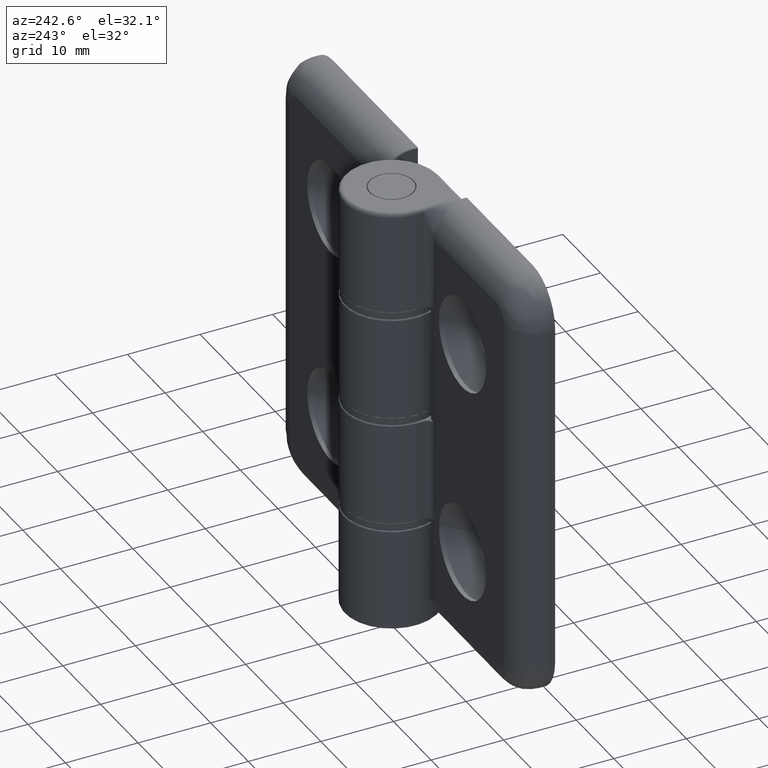
[diagram: clean part render]
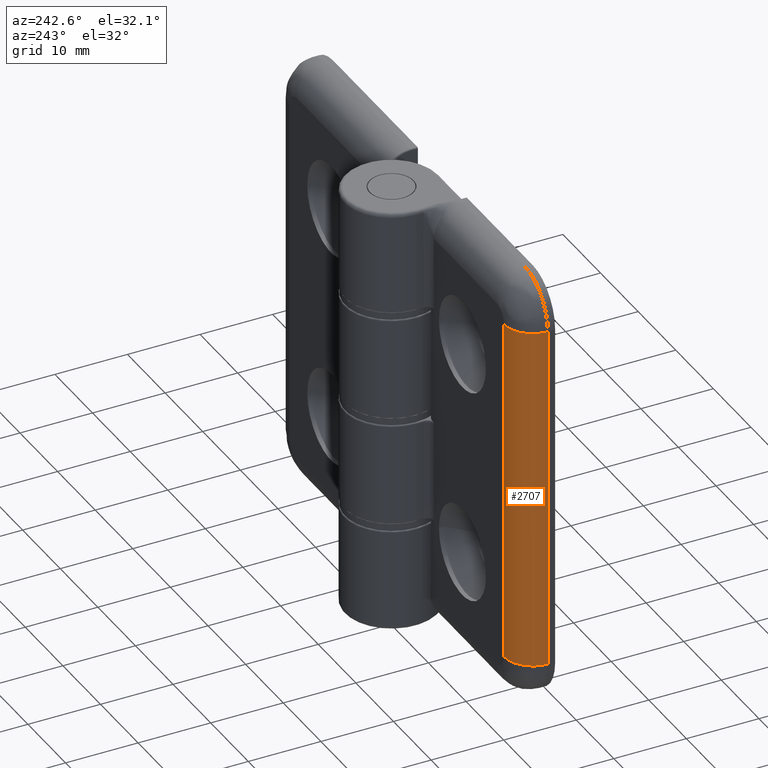
[diagram: same view with one face highlighted and labeled with its STEP entity id]
A machine part, auxiliary view. The second image highlights one B-rep face of the part: STEP entity #2707.
In plain terms, the highlighted cylindrical surface (edge-blend (fillet) strip) has radius 4 mm, axis along (0, 0, 1).
Its self-contained STEP definition (entity closure, byte-faithful):
#247=CIRCLE('',#2950,4.);
#249=CIRCLE('',#2952,4.);
#437=FACE_OUTER_BOUND('',#622,.T.);
#622=EDGE_LOOP('',(#2108,#2109,#2110,#2111));
#839=LINE('',#4398,#1017);
#851=LINE('',#4517,#1029);
#1017=VECTOR('',#3406,48.);
#1029=VECTOR('',#3522,48.);
#1231=VERTEX_POINT('',#4396);
#1232=VERTEX_POINT('',#4397);
#1254=VERTEX_POINT('',#4497);
#1256=VERTEX_POINT('',#4511);
#1523=EDGE_CURVE('',#1231,#1232,#839,.T.);
#1563=EDGE_CURVE('',#1232,#1254,#247,.T.);
#1565=EDGE_CURVE('',#1256,#1231,#249,.T.);
#1568=EDGE_CURVE('',#1254,#1256,#851,.T.);
#2108=ORIENTED_EDGE('',*,*,#1523,.T.);
#2109=ORIENTED_EDGE('',*,*,#1563,.T.);
#2110=ORIENTED_EDGE('',*,*,#1568,.T.);
#2111=ORIENTED_EDGE('',*,*,#1565,.T.);
#2597=CYLINDRICAL_SURFACE('',#2955,4.);
#2707=ADVANCED_FACE('',(#437),#2597,.T.);
#2950=AXIS2_PLACEMENT_3D('',#4500,#3510,#3511);
#2952=AXIS2_PLACEMENT_3D('',#4512,#3514,#3515);
#2955=AXIS2_PLACEMENT_3D('',#4516,#3520,#3521);
#3406=DIRECTION('',(0.,0.,-1.));
#3510=DIRECTION('center_axis',(0.,0.,1.));
#3511=DIRECTION('ref_axis',(0.,1.,0.));
#3514=DIRECTION('center_axis',(0.,0.,-1.));
#3515=DIRECTION('ref_axis',(-1.,0.,0.));
#3520=DIRECTION('center_axis',(0.,0.,1.));
#3521=DIRECTION('ref_axis',(-0.707106781186547,0.707106781186548,0.));
#3522=DIRECTION('',(0.,0.,1.));
#4396=CARTESIAN_POINT('',(-26.,-2.00000000000001,24.));
#4397=CARTESIAN_POINT('',(-26.,-2.00000000000001,-24.));
#4398=CARTESIAN_POINT('',(-26.,-2.00000000000001,0.));
#4497=CARTESIAN_POINT('',(-30.,-6.00000000000001,-24.));
#4500=CARTESIAN_POINT('Origin',(-26.,-6.00000000000001,-24.));
#4511=CARTESIAN_POINT('',(-30.,-6.00000000000001,24.));
#4512=CARTESIAN_POINT('Origin',(-26.,-6.00000000000001,24.));
#4516=CARTESIAN_POINT('Origin',(-26.,-6.00000000000001,0.));
#4517=CARTESIAN_POINT('',(-30.,-6.00000000000001,0.));